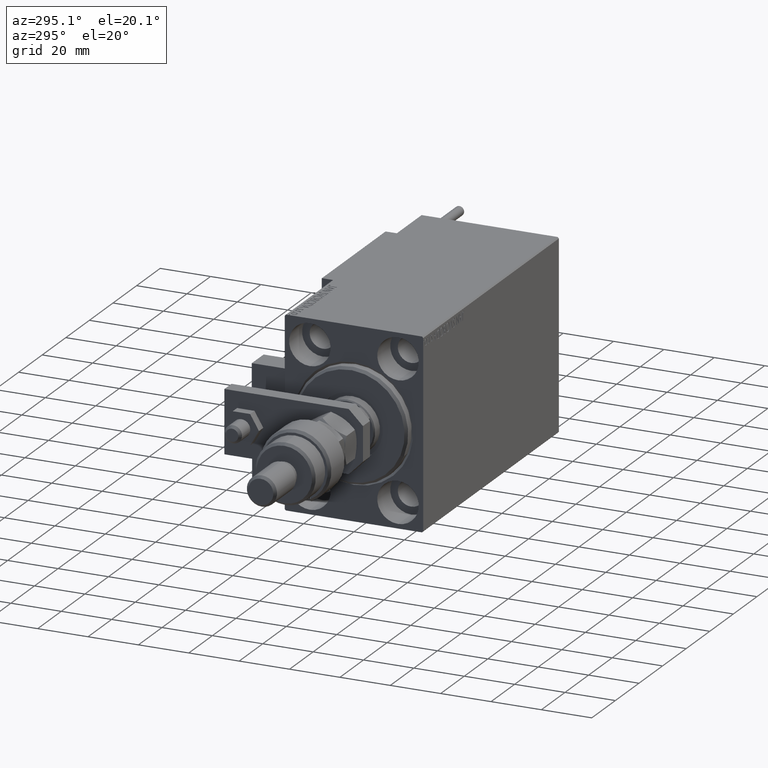
[diagram: clean part render]
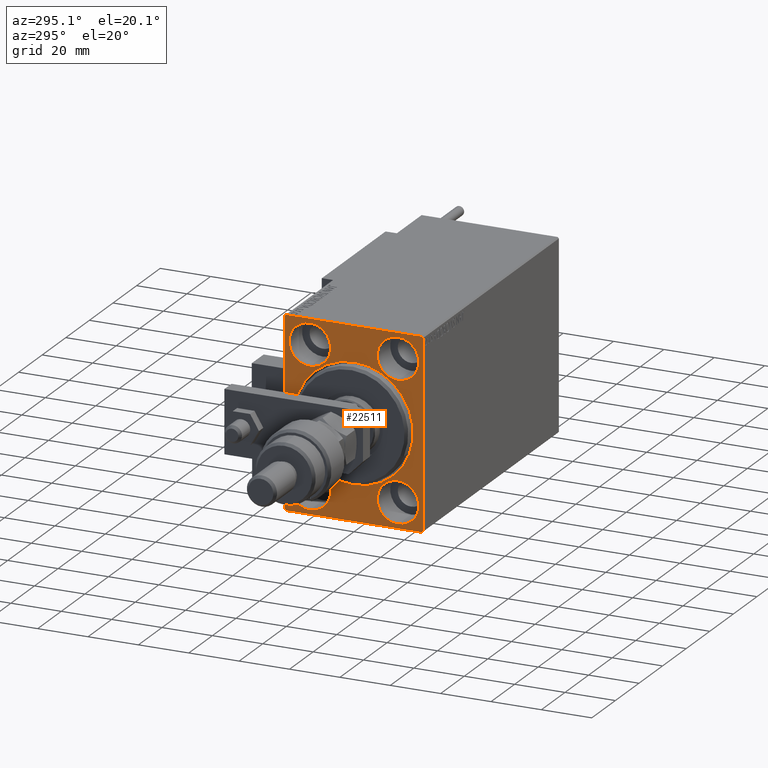
[diagram: same view with one face highlighted and labeled with its STEP entity id]
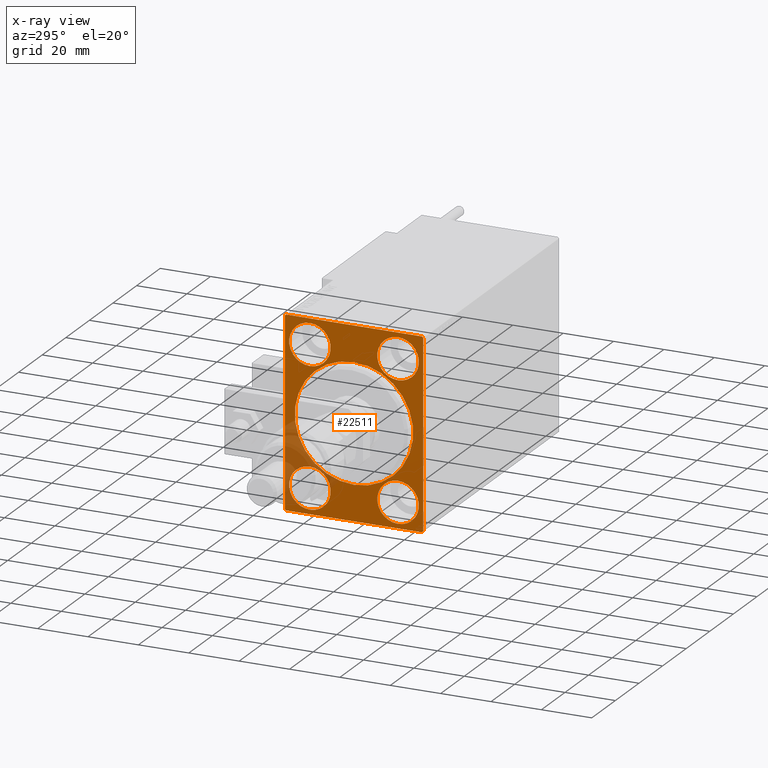
[diagram: x-ray of the same camera — body ghosted, the highlighted face saturated]
A machine part, auxiliary view. The second image highlights one B-rep face of the part: STEP entity #22511.
The next image is the same camera in x-ray: the body ghosted, the highlighted face saturated — about 12% of this face is hidden behind the body in this view.
In plain terms, the highlighted planar face has unit normal (1, 0, 0).
Its self-contained STEP definition (entity closure, byte-faithful):
#195 = VERTEX_POINT ( 'NONE', #7102 ) ;
#786 = DIRECTION ( 'NONE',  ( -0.000000000000000000, -0.7071067811865474617, 0.7071067811865474617 ) ) ;
#869 = DIRECTION ( 'NONE',  ( 0.000000000000000000, 0.000000000000000000, 1.000000000000000000 ) ) ;
#1497 = AXIS2_PLACEMENT_3D ( 'NONE', #21706, #33948, #47945 ) ;
#1958 = CARTESIAN_POINT ( 'NONE',  ( 0.000000000000000000, 27.50000000000000355, -37.00000000000000000 ) ) ;
#2092 = DIRECTION ( 'NONE',  ( -1.000000000000000000, 0.000000000000000000, 0.000000000000000000 ) ) ;
#2997 = CARTESIAN_POINT ( 'NONE',  ( 0.000000000000000000, 0.000000000000000000, 23.50000000000000355 ) ) ;
#3010 = DIRECTION ( 'NONE',  ( 0.000000000000000000, -0.7071067811865378028, -0.7071067811865573427 ) ) ;
#3339 = VECTOR ( 'NONE', #44165, 1000.000000000000000 ) ;
#3643 = CARTESIAN_POINT ( 'NONE',  ( 0.000000000000000000, -17.49999999999999645, 27.49999999999999645 ) ) ;
#3860 = AXIS2_PLACEMENT_3D ( 'NONE', #26449, #34958, #38177 ) ;
#4071 = EDGE_CURVE ( 'NONE', #38722, #30130, #11090, .T. ) ;
#4157 = DIRECTION ( 'NONE',  ( -1.000000000000000000, 0.000000000000000000, 0.000000000000000000 ) ) ;
#4268 = EDGE_CURVE ( 'NONE', #48146, #29336, #47717, .T. ) ;
#4439 = DIRECTION ( 'NONE',  ( 0.000000000000000000, 0.000000000000000000, -1.000000000000000000 ) ) ;
#4679 = CIRCLE ( 'NONE', #34469, 8.249999999999992895 ) ;
#4794 = CARTESIAN_POINT ( 'NONE',  ( 0.000000000000000000, -27.00000000000000355, -37.50000000000000000 ) ) ;
#5380 = AXIS2_PLACEMENT_3D ( 'NONE', #47601, #11068, #7338 ) ;
#5679 = FACE_OUTER_BOUND ( 'NONE', #40121, .T. ) ;
#6255 = CARTESIAN_POINT ( 'NONE',  ( 0.000000000000000000, -17.50000000000000355, -27.50000000000000355 ) ) ;
#6461 = FACE_BOUND ( 'NONE', #15873, .T. ) ;
#6517 = DIRECTION ( 'NONE',  ( 0.000000000000000000, 0.000000000000000000, 1.000000000000000000 ) ) ;
#6956 = DIRECTION ( 'NONE',  ( 0.000000000000000000, -1.000000000000000000, -1.261617073437677999E-16 ) ) ;
#7102 = CARTESIAN_POINT ( 'NONE',  ( 0.000000000000000000, -27.00000000000001776, 37.50000000000000000 ) ) ;
#7338 = DIRECTION ( 'NONE',  ( 0.000000000000000000, 0.000000000000000000, 1.000000000000000000 ) ) ;
#7384 = LINE ( 'NONE', #31113, #3339 ) ;
#8525 = ORIENTED_EDGE ( 'NONE', *, *, #31631, .T. ) ;
#8711 = DIRECTION ( 'NONE',  ( -1.000000000000000000, 0.000000000000000000, 0.000000000000000000 ) ) ;
#8831 = CARTESIAN_POINT ( 'NONE',  ( 0.000000000000000000, -17.49999999999999645, 19.25000000000000000 ) ) ;
#8916 = LINE ( 'NONE', #12410, #26032 ) ;
#9420 = EDGE_CURVE ( 'NONE', #13891, #34464, #11910, .T. ) ;
#10119 = EDGE_LOOP ( 'NONE', ( #35204, #8525 ) ) ;
#10471 = LINE ( 'NONE', #1958, #25688 ) ;
#10852 = CIRCLE ( 'NONE', #1497, 8.250000000000000000 ) ;
#11068 = DIRECTION ( 'NONE',  ( -1.000000000000000000, 0.000000000000000000, 0.000000000000000000 ) ) ;
#11090 = CIRCLE ( 'NONE', #43439, 8.250000000000000000 ) ;
#11697 = VERTEX_POINT ( 'NONE', #14627 ) ;
#11910 = LINE ( 'NONE', #28165, #35803 ) ;
#12195 = CIRCLE ( 'NONE', #5380, 8.249999999999992895 ) ;
#12410 = CARTESIAN_POINT ( 'NONE',  ( 0.000000000000000000, 27.50000000000000355, -37.50000000000000000 ) ) ;
#12663 = DIRECTION ( 'NONE',  ( 0.000000000000000000, -9.251858538542970348E-17, 1.000000000000000000 ) ) ;
#12936 = DIRECTION ( 'NONE',  ( 0.000000000000000000, 0.000000000000000000, 1.000000000000000000 ) ) ;
#12987 = EDGE_CURVE ( 'NONE', #49149, #36863, #31451, .T. ) ;
#13835 = EDGE_CURVE ( 'NONE', #33268, #28174, #12195, .T. ) ;
#13891 = VERTEX_POINT ( 'NONE', #35834 ) ;
#14627 = CARTESIAN_POINT ( 'NONE',  ( 0.000000000000000000, -17.49999999999999645, 35.74999999999999289 ) ) ;
#14709 = CARTESIAN_POINT ( 'NONE',  ( 0.000000000000000000, 27.50000000000000355, -37.00000000000000000 ) ) ;
#14781 = DIRECTION ( 'NONE',  ( -1.000000000000000000, 0.000000000000000000, 0.000000000000000000 ) ) ;
#14907 = ORIENTED_EDGE ( 'NONE', *, *, #42959, .F. ) ;
#14971 = CARTESIAN_POINT ( 'NONE',  ( 0.000000000000000000, 17.49999999999999645, -19.25000000000000355 ) ) ;
#15392 = ORIENTED_EDGE ( 'NONE', *, *, #4071, .F. ) ;
#15873 = EDGE_LOOP ( 'NONE', ( #38289, #32843 ) ) ;
#16371 = AXIS2_PLACEMENT_3D ( 'NONE', #49767, #8711, #45238 ) ;
#16699 = CARTESIAN_POINT ( 'NONE',  ( 0.000000000000000000, 26.99999999999999645, 37.50000000000000711 ) ) ;
#16714 = VECTOR ( 'NONE', #786, 1000.000000000000114 ) ;
#17778 = DIRECTION ( 'NONE',  ( 0.000000000000000000, 0.000000000000000000, 1.000000000000000000 ) ) ;
#18462 = FACE_BOUND ( 'NONE', #47624, .T. ) ;
#19086 = ORIENTED_EDGE ( 'NONE', *, *, #31231, .F. ) ;
#19295 = CARTESIAN_POINT ( 'NONE',  ( 0.000000000000000000, 27.00000000000001776, -37.50000000000000000 ) ) ;
#20772 = LINE ( 'NONE', #4794, #16714 ) ;
#20843 = CARTESIAN_POINT ( 'NONE',  ( 0.000000000000000000, 17.50000000000000355, 35.74999999999999289 ) ) ;
#21706 = CARTESIAN_POINT ( 'NONE',  ( 0.000000000000000000, -17.50000000000000355, -27.50000000000000355 ) ) ;
#22175 = EDGE_LOOP ( 'NONE', ( #42255, #24424 ) ) ;
#22460 = FACE_BOUND ( 'NONE', #22175, .T. ) ;
#22511 = ADVANCED_FACE ( 'NONE', ( #37904, #6461, #46986, #22460, #18462, #5679 ), #46721, .F. ) ;
#22812 = CARTESIAN_POINT ( 'NONE',  ( 0.000000000000000000, 17.49999999999999645, -27.50000000000000355 ) ) ;
#23193 = DIRECTION ( 'NONE',  ( 0.000000000000000000, 1.000000000000000000, 0.000000000000000000 ) ) ;
#23388 = DIRECTION ( 'NONE',  ( 0.000000000000000000, 0.000000000000000000, 1.000000000000000000 ) ) ;
#24424 = ORIENTED_EDGE ( 'NONE', *, *, #13835, .F. ) ;
#24646 = DIRECTION ( 'NONE',  ( -0.000000000000000000, 0.7071067811865378028, 0.7071067811865573427 ) ) ;
#24723 = EDGE_CURVE ( 'NONE', #49149, #34464, #20772, .T. ) ;
#25338 = CIRCLE ( 'NONE', #49176, 8.250000000000000000 ) ;
#25350 = CIRCLE ( 'NONE', #43207, 23.50000000000000355 ) ;
#25688 = VECTOR ( 'NONE', #3010, 1000.000000000000000 ) ;
#26032 = VECTOR ( 'NONE', #12663, 1000.000000000000000 ) ;
#26449 = CARTESIAN_POINT ( 'NONE',  ( 0.000000000000000000, 0.000000000000000000, 0.000000000000000000 ) ) ;
#26865 = CARTESIAN_POINT ( 'NONE',  ( 0.000000000000000000, 17.50000000000000355, 27.49999999999999645 ) ) ;
#27109 = CIRCLE ( 'NONE', #34778, 23.50000000000000355 ) ;
#27254 = EDGE_CURVE ( 'NONE', #30130, #38722, #10852, .T. ) ;
#27263 = ORIENTED_EDGE ( 'NONE', *, *, #35535, .T. ) ;
#27608 = EDGE_CURVE ( 'NONE', #29336, #48146, #25338, .T. ) ;
#28165 = CARTESIAN_POINT ( 'NONE',  ( 0.000000000000000000, -27.50000000000000355, 37.50000000000000000 ) ) ;
#28174 = VERTEX_POINT ( 'NONE', #20843 ) ;
#28278 = CIRCLE ( 'NONE', #16371, 8.249999999999992895 ) ;
#28382 = CARTESIAN_POINT ( 'NONE',  ( 0.000000000000000000, -27.50000000000000355, 37.00000000000000000 ) ) ;
#28533 = DIRECTION ( 'NONE',  ( 1.000000000000000000, 0.000000000000000000, 0.000000000000000000 ) ) ;
#28790 = CARTESIAN_POINT ( 'NONE',  ( 0.000000000000000000, 0.000000000000000000, 0.000000000000000000 ) ) ;
#29204 = CARTESIAN_POINT ( 'NONE',  ( 0.000000000000000000, 17.49999999999999645, -35.75000000000000711 ) ) ;
#29336 = VERTEX_POINT ( 'NONE', #14971 ) ;
#29426 = EDGE_CURVE ( 'NONE', #52524, #47560, #25350, .T. ) ;
#29592 = DIRECTION ( 'NONE',  ( 0.000000000000000000, 0.000000000000000000, -1.000000000000000000 ) ) ;
#30130 = VERTEX_POINT ( 'NONE', #47506 ) ;
#30181 = DIRECTION ( 'NONE',  ( -1.000000000000000000, 0.000000000000000000, 0.000000000000000000 ) ) ;
#30374 = VERTEX_POINT ( 'NONE', #14709 ) ;
#30429 = CARTESIAN_POINT ( 'NONE',  ( 0.000000000000000000, 27.49999999999999645, 37.00000000000001421 ) ) ;
#31002 = ORIENTED_EDGE ( 'NONE', *, *, #32170, .T. ) ;
#31113 = CARTESIAN_POINT ( 'NONE',  ( 0.000000000000000000, 26.99999999999999645, 37.50000000000000711 ) ) ;
#31231 = EDGE_CURVE ( 'NONE', #11697, #34880, #39044, .T. ) ;
#31451 = LINE ( 'NONE', #31986, #40235 ) ;
#31631 = EDGE_CURVE ( 'NONE', #47560, #52524, #27109, .T. ) ;
#31986 = CARTESIAN_POINT ( 'NONE',  ( 0.000000000000000000, -27.50000000000000355, -37.50000000000000000 ) ) ;
#31997 = LINE ( 'NONE', #48009, #44314 ) ;
#32170 = EDGE_CURVE ( 'NONE', #33400, #35914, #7384, .T. ) ;
#32843 = ORIENTED_EDGE ( 'NONE', *, *, #4268, .F. ) ;
#33268 = VERTEX_POINT ( 'NONE', #35371 ) ;
#33400 = VERTEX_POINT ( 'NONE', #16699 ) ;
#33583 = CARTESIAN_POINT ( 'NONE',  ( 0.000000000000000000, 0.000000000000000000, 0.000000000000000000 ) ) ;
#33948 = DIRECTION ( 'NONE',  ( -1.000000000000000000, 0.000000000000000000, 0.000000000000000000 ) ) ;
#34464 = VERTEX_POINT ( 'NONE', #42009 ) ;
#34469 = AXIS2_PLACEMENT_3D ( 'NONE', #26865, #2092, #23388 ) ;
#34778 = AXIS2_PLACEMENT_3D ( 'NONE', #33583, #45863, #29592 ) ;
#34880 = VERTEX_POINT ( 'NONE', #8831 ) ;
#34958 = DIRECTION ( 'NONE',  ( 1.000000000000000000, 0.000000000000000000, 0.000000000000000000 ) ) ;
#35131 = EDGE_CURVE ( 'NONE', #33400, #195, #31997, .T. ) ;
#35204 = ORIENTED_EDGE ( 'NONE', *, *, #29426, .T. ) ;
#35371 = CARTESIAN_POINT ( 'NONE',  ( 0.000000000000000000, 17.50000000000000355, 19.25000000000000000 ) ) ;
#35535 = EDGE_CURVE ( 'NONE', #13891, #195, #44916, .T. ) ;
#35803 = VECTOR ( 'NONE', #4439, 1000.000000000000000 ) ;
#35834 = CARTESIAN_POINT ( 'NONE',  ( 0.000000000000000000, -27.50000000000000355, 37.00000000000000000 ) ) ;
#35914 = VERTEX_POINT ( 'NONE', #30429 ) ;
#36863 = VERTEX_POINT ( 'NONE', #19295 ) ;
#37365 = CARTESIAN_POINT ( 'NONE',  ( 0.000000000000000000, 17.49999999999999645, -27.50000000000000355 ) ) ;
#37748 = EDGE_LOOP ( 'NONE', ( #19086, #14907 ) ) ;
#37904 = FACE_BOUND ( 'NONE', #10119, .T. ) ;
#38062 = EDGE_CURVE ( 'NONE', #30374, #36863, #10471, .T. ) ;
#38177 = DIRECTION ( 'NONE',  ( 0.000000000000000000, 0.000000000000000000, -1.000000000000000000 ) ) ;
#38289 = ORIENTED_EDGE ( 'NONE', *, *, #27608, .F. ) ;
#38536 = ORIENTED_EDGE ( 'NONE', *, *, #24723, .T. ) ;
#38596 = ORIENTED_EDGE ( 'NONE', *, *, #38062, .T. ) ;
#38620 = ORIENTED_EDGE ( 'NONE', *, *, #27254, .F. ) ;
#38722 = VERTEX_POINT ( 'NONE', #39569 ) ;
#39044 = CIRCLE ( 'NONE', #50144, 8.249999999999992895 ) ;
#39061 = DIRECTION ( 'NONE',  ( -1.000000000000000000, 0.000000000000000000, 0.000000000000000000 ) ) ;
#39171 = AXIS2_PLACEMENT_3D ( 'NONE', #37365, #30181, #869 ) ;
#39569 = CARTESIAN_POINT ( 'NONE',  ( 0.000000000000000000, -17.50000000000000355, -19.25000000000000355 ) ) ;
#40121 = EDGE_LOOP ( 'NONE', ( #51410, #27263, #52488, #31002, #45224, #38596, #50623, #38536 ) ) ;
#40235 = VECTOR ( 'NONE', #23193, 1000.000000000000000 ) ;
#41587 = CARTESIAN_POINT ( 'NONE',  ( 0.000000000000000000, 2.877919977996280715E-15, -23.50000000000000355 ) ) ;
#42009 = CARTESIAN_POINT ( 'NONE',  ( 0.000000000000000000, -27.50000000000000355, -37.00000000000000000 ) ) ;
#42255 = ORIENTED_EDGE ( 'NONE', *, *, #48921, .F. ) ;
#42959 = EDGE_CURVE ( 'NONE', #34880, #11697, #28278, .T. ) ;
#43207 = AXIS2_PLACEMENT_3D ( 'NONE', #28790, #28533, #49582 ) ;
#43439 = AXIS2_PLACEMENT_3D ( 'NONE', #6255, #14781, #6517 ) ;
#44165 = DIRECTION ( 'NONE',  ( -0.000000000000000000, 0.7071067811865524577, -0.7071067811865426878 ) ) ;
#44314 = VECTOR ( 'NONE', #6956, 1000.000000000000000 ) ;
#44916 = LINE ( 'NONE', #28382, #50294 ) ;
#45224 = ORIENTED_EDGE ( 'NONE', *, *, #51140, .F. ) ;
#45238 = DIRECTION ( 'NONE',  ( 0.000000000000000000, 0.000000000000000000, 1.000000000000000000 ) ) ;
#45863 = DIRECTION ( 'NONE',  ( 1.000000000000000000, 0.000000000000000000, 0.000000000000000000 ) ) ;
#46287 = CARTESIAN_POINT ( 'NONE',  ( 0.000000000000000000, -27.00000000000000355, -37.50000000000000000 ) ) ;
#46721 = PLANE ( 'NONE',  #3860 ) ;
#46986 = FACE_BOUND ( 'NONE', #37748, .T. ) ;
#47506 = CARTESIAN_POINT ( 'NONE',  ( 0.000000000000000000, -17.50000000000000355, -35.75000000000000711 ) ) ;
#47560 = VERTEX_POINT ( 'NONE', #41587 ) ;
#47601 = CARTESIAN_POINT ( 'NONE',  ( 0.000000000000000000, 17.50000000000000355, 27.49999999999999645 ) ) ;
#47624 = EDGE_LOOP ( 'NONE', ( #15392, #38620 ) ) ;
#47717 = CIRCLE ( 'NONE', #39171, 8.250000000000000000 ) ;
#47945 = DIRECTION ( 'NONE',  ( 0.000000000000000000, 0.000000000000000000, 1.000000000000000000 ) ) ;
#48009 = CARTESIAN_POINT ( 'NONE',  ( 0.000000000000000000, 27.49999999999999645, 37.50000000000000711 ) ) ;
#48146 = VERTEX_POINT ( 'NONE', #29204 ) ;
#48921 = EDGE_CURVE ( 'NONE', #28174, #33268, #4679, .T. ) ;
#49149 = VERTEX_POINT ( 'NONE', #46287 ) ;
#49176 = AXIS2_PLACEMENT_3D ( 'NONE', #22812, #39061, #17778 ) ;
#49582 = DIRECTION ( 'NONE',  ( 0.000000000000000000, 0.000000000000000000, -1.000000000000000000 ) ) ;
#49767 = CARTESIAN_POINT ( 'NONE',  ( 0.000000000000000000, -17.49999999999999645, 27.49999999999999645 ) ) ;
#50144 = AXIS2_PLACEMENT_3D ( 'NONE', #3643, #4157, #12936 ) ;
#50294 = VECTOR ( 'NONE', #24646, 1000.000000000000000 ) ;
#50623 = ORIENTED_EDGE ( 'NONE', *, *, #12987, .F. ) ;
#51140 = EDGE_CURVE ( 'NONE', #30374, #35914, #8916, .T. ) ;
#51410 = ORIENTED_EDGE ( 'NONE', *, *, #9420, .F. ) ;
#52488 = ORIENTED_EDGE ( 'NONE', *, *, #35131, .F. ) ;
#52524 = VERTEX_POINT ( 'NONE', #2997 ) ;